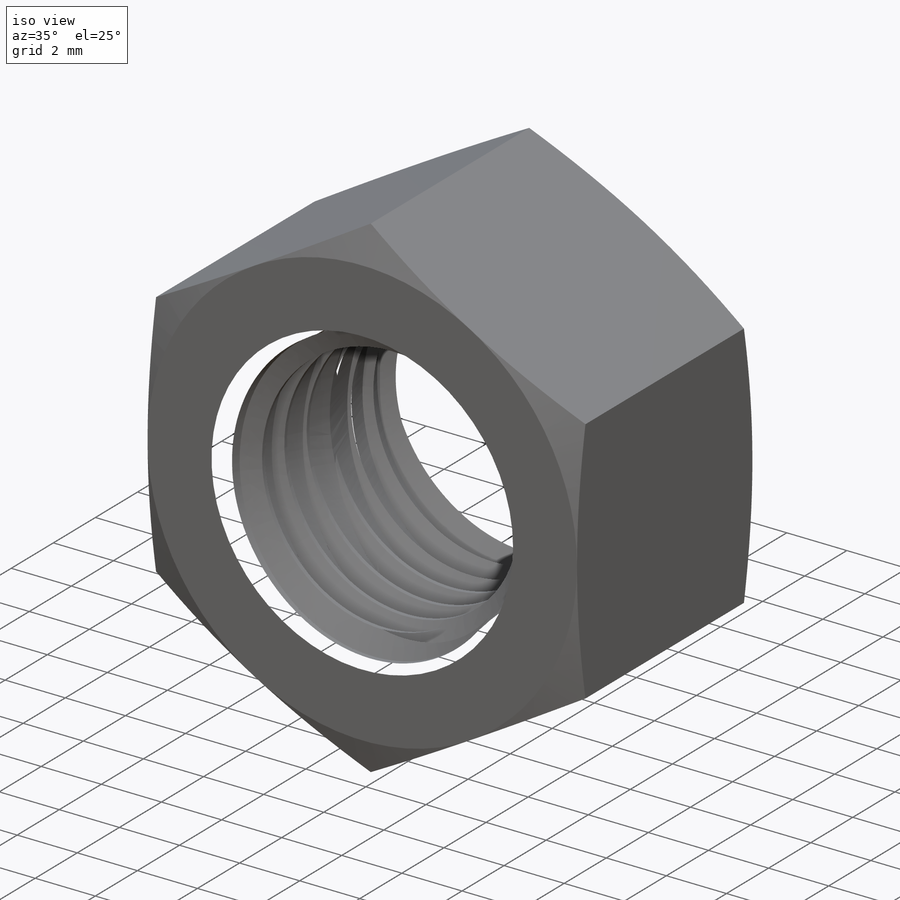
[diagram: iso view]
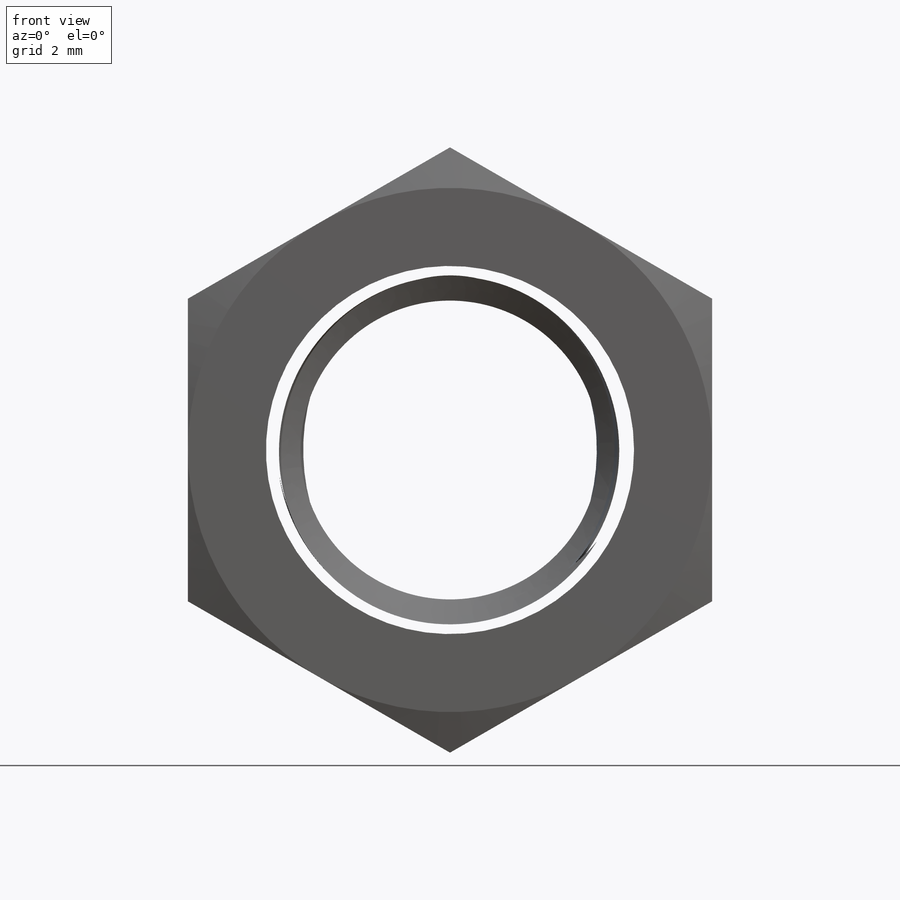
[diagram: front view]
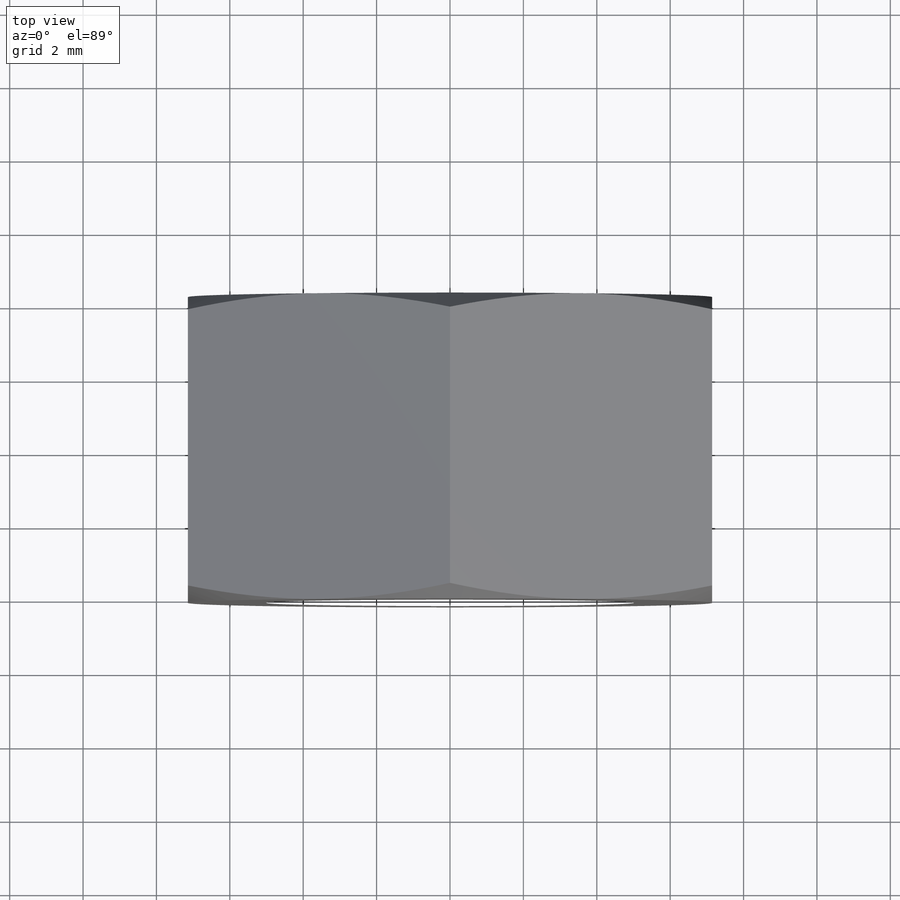
[diagram: top view]
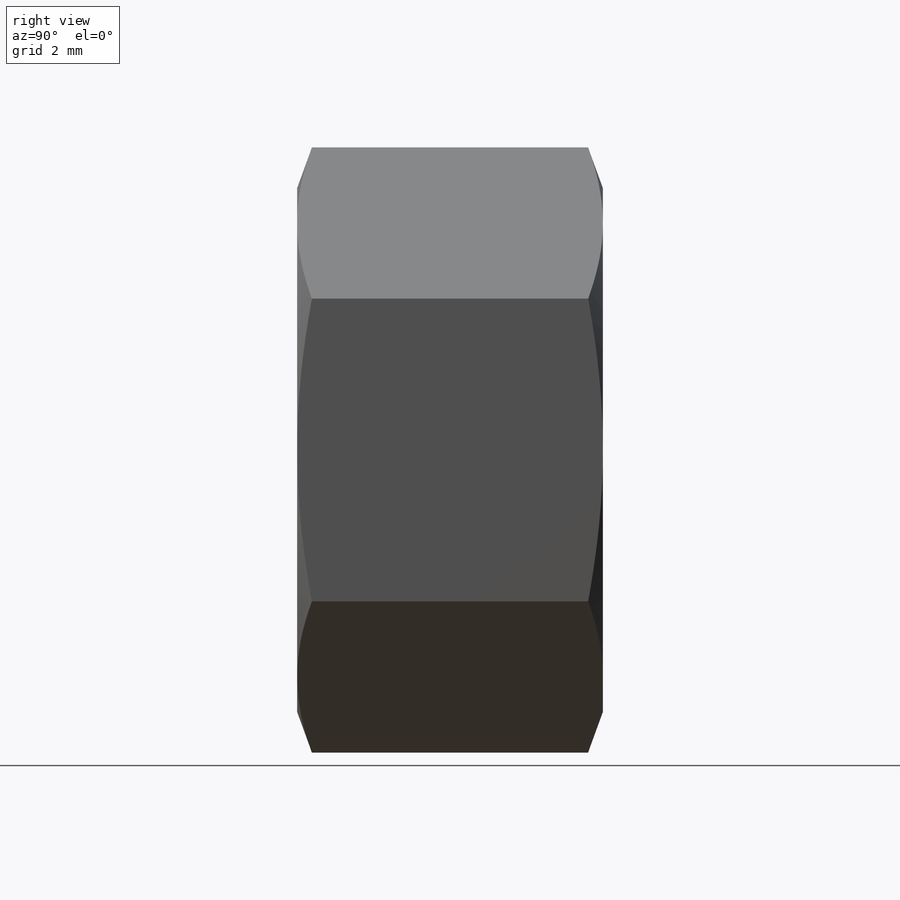
[diagram: right view]
SOLIDWORKS PART (.sldprt)
format: sldprt  version: not decoded by parser v0  size: 1,129,472 bytes
history: native  units: mm
features: sketch x13, cut_extrude x7, material x1, extrude x1, helix x1, mirror x1, sweep x1 (+14 scaffold rows collapsed)
feature tree (39):
  scaffold x14  (default folders/planes/origin — collapsed)
  material  "Material <not specified>"
  sketch  "Sketch1"  dims[Hex=14.2875mm]
  extrude  "Extrude1"  Depth=8.334375mm height=8.334375mm
  sketch  "Sketch2"  dims[D1=0.381mm]
  cut_extrude  "Cut-Extrude1"  [1 undecoded]
  sketch  "Sketch3"  dims[D1=0.0mm]
  cut_extrude  "Cut-Extrude2"  [1 undecoded]
  sketch  "Sketch4"  dims[thread od=9.525mm D2=0.762mm]
  sketch  "Sketch5"
  sketch  "Sketch7"
  helix  "Helix/Spiral1"  Pitch=25.4mm pitch=1.058333mm
  sketch  "Sketch15"
  mirror  "Mirror1"
  sketch  "Sketch9"  dims[c1.D1=~0.529167mm c1.D2=~0.132292mm c1.D3=~0.480493mm c2.D3=60.0deg]
  sweep  "Sweep1"
  sketch  "Sketch10"  dims[D1=0.0mm]
  cut_extrude  "Cut-Extrude4"  [1 undecoded]
  sketch  "Sketch11"  dims[D1=0.0mm]
  cut_extrude  "Cut-Extrude5"  [1 undecoded]
  sketch  "Sketch13"  dims[D1=0.254mm]
  cut_extrude  "Cut-Extrude8"  Depth=2.116667mm
  sketch  "Sketch14"  dims[D1=0.0mm]
  cut_extrude  "Cut-Extrude9"  Depth=2.116667mm
  sketch  "Sketch16"  dims[D1=~3.76064mm]
  cut_extrude  "Cut-Extrude10"  Depth=0.508mm
decode coverage: 15 of 24 modeling features carry decoded parameters
note: ~ marks probable driven/reference dimensions
note: 4 parameter values undecoded
summary: no parameter record found for 4 features
note: suppression state not decoded; provenance and decode notes live in map.json
